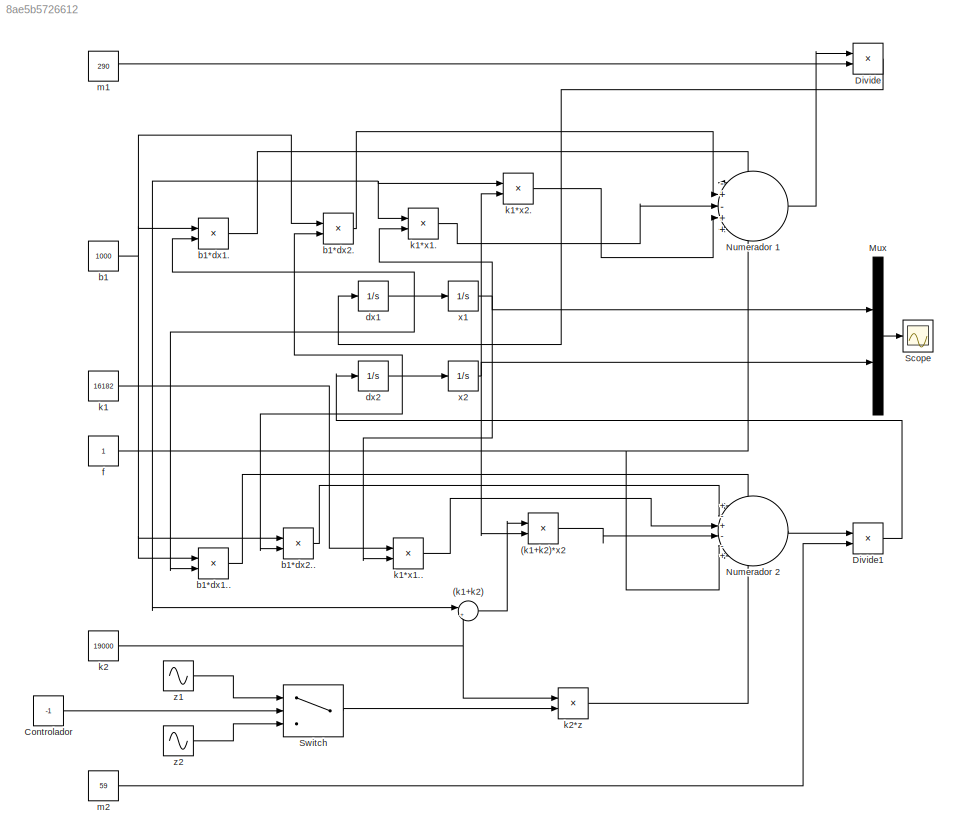
MODEL slx_8ae5b5726612
KIND model
CONFIG AbsTol = auto
CONFIG EnableMultiTasking = off
CONFIG FixedStep = auto
CONFIG MaxStep = auto
CONFIG MinStep = auto
CONFIG RelTol = 1e-3
CONFIG SampleTimeConstraint = Unconstrained
CONFIG SolverName = VariableStepAuto
CONFIG StartTime = 0.0
CONFIG StopTime = 10.0
BLOCK [Sum] (k1+k2)
  Inputs = |++
BLOCK [Product] (k1+k2)*x2
BLOCK [Constant] Controlador
  Value = -1
BLOCK [Product] Divide
  Inputs = */
BLOCK [Product] Divide1
  Inputs = */
BLOCK [Mux] Mux
  DisplayOption = bar
  Inputs = 2
BLOCK [Sum] Numerador 1
  Inputs = -+-++
BLOCK [Sum] Numerador 2
  Inputs = +-+--+
BLOCK [Scope] Scope
  ActiveDisplayYMaximum = 0.013651196014192185
  ActiveDisplayYMinimum = -0.0083261559120885228
  Floating = off
  GraphicalSettings = {"Style":{"BackgroundColor":[0.12941176470588237,0.12941176470588237,0.12941176470588237],"AxesColor":[0.07058823529411765,0.07058823529411765,0.07058823529411765],"LabelsColor":[0.8509803921568627,0.8509803921568627,0.8509803921568627],"PreserveColors":false,"Visible":[true,true],"LineStyle":["-","-"],"LineWidth":[1.5,1.5],"BarWidth":[0.9,0.9],"LineColor":["auto","auto"],"LineFaceAlpha":[1,1],"Li...<+1991ch>
  MultipleDisplayCache = [{"MaxYLimMag":0.013651196014192185,"MaxYLimReal":0.013651196014192185,"MinYLimMag":0,"MinYLimReal":-0.0083261559120885228,"PlotAsMagnitudePhase":false,"ShowGrid":true,"ShowLegend":false,"Title":"%<SignalLabel>","YLabel":""}]
  NumInputPorts = 1
  ScopeFrameLocation = window
  WasSavedAsWebScope = on
  WindowPosition = [780.000000,380.000000,656.000000,286.000000,]
BLOCK [Switch] Switch
  Criteria = u2 > Threshold
  InputSameDT = off
  SaturateOnIntegerOverflow = off
BLOCK [Constant] b1
  Value = 1000
BLOCK [Product] b1*dx1.
BLOCK [Product] b1*dx1..
BLOCK [Product] b1*dx2.
BLOCK [Product] b1*dx2..
BLOCK [Integrator] dx1
BLOCK [Integrator] dx2
BLOCK [Constant] f
BLOCK [Constant] k1
  Value = 16182
BLOCK [Product] k1*x1.
BLOCK [Product] k1*x1..
BLOCK [Product] k1*x2.
BLOCK [Constant] k2
  Value = 19000
BLOCK [Product] k2*z
BLOCK [Constant] m1
  Value = 290
BLOCK [Constant] m2
  Value = 59
BLOCK [Integrator] x1
BLOCK [Integrator] x2
BLOCK [Sin] z1
  Amplitude = 0.05
  Frequency = 0.5*pi
  SampleTime = 0
BLOCK [Sin] z2
  Amplitude = 0.05
  Frequency = 20*pi
  SampleTime = 0
LINE (k1+k2)*x2:1 -> Numerador 2:4
LINE (k1+k2):1 -> (k1+k2)*x2:1
LINE Controlador:1 -> Switch:2
LINE Divide1:1 -> dx2:1
LINE Divide:1 -> dx1:1
LINE Mux:1 -> Scope:1
LINE Numerador 1:1 -> Divide:1
LINE Numerador 2:1 -> Divide1:1
LINE Switch:1 -> k2*z:2
LINE b1*dx1..:1 -> Numerador 2:1
LINE b1*dx1.:1 -> Numerador 1:1
LINE b1*dx2..:1 -> Numerador 2:2
LINE b1*dx2.:1 -> Numerador 1:2
NET b1:1 -> b1*dx1..:1, b1*dx1.:1, b1*dx2..:1, b1*dx2.:1
NET dx1:1 -> b1*dx1..:2, b1*dx1.:2, x1:1
NET dx2:1 -> b1*dx2..:2, b1*dx2.:2, x2:1
NET f:1 -> Numerador 1:5, Numerador 2:5
LINE k1*x1..:1 -> Numerador 2:3
LINE k1*x1.:1 -> Numerador 1:3
LINE k1*x2.:1 -> Numerador 1:4
NET k1:1 -> (k1+k2):1, k1*x1..:1, k1*x1.:1, k1*x2.:1
LINE k2*z:1 -> Numerador 2:6
NET k2:1 -> (k1+k2):2, k2*z:1
LINE m1:1 -> Divide:2
LINE m2:1 -> Divide1:2
NET x1:1 -> Mux:1, k1*x1..:2, k1*x1.:2
NET x2:1 -> (k1+k2)*x2:2, Mux:2, k1*x2.:2
LINE z1:1 -> Switch:1
LINE z2:1 -> Switch:3
note: NET lines group one-source signal fan-out (src -> all destinations, sorted); 1:1 wires keep LINE
